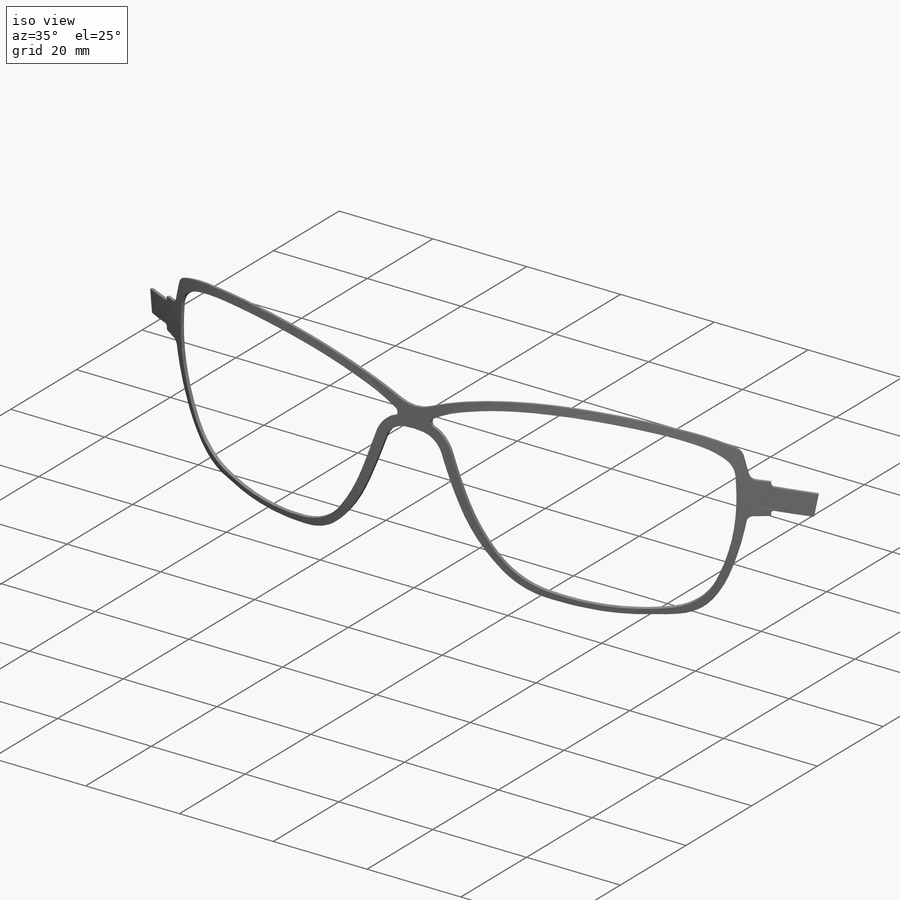
[diagram: iso view]
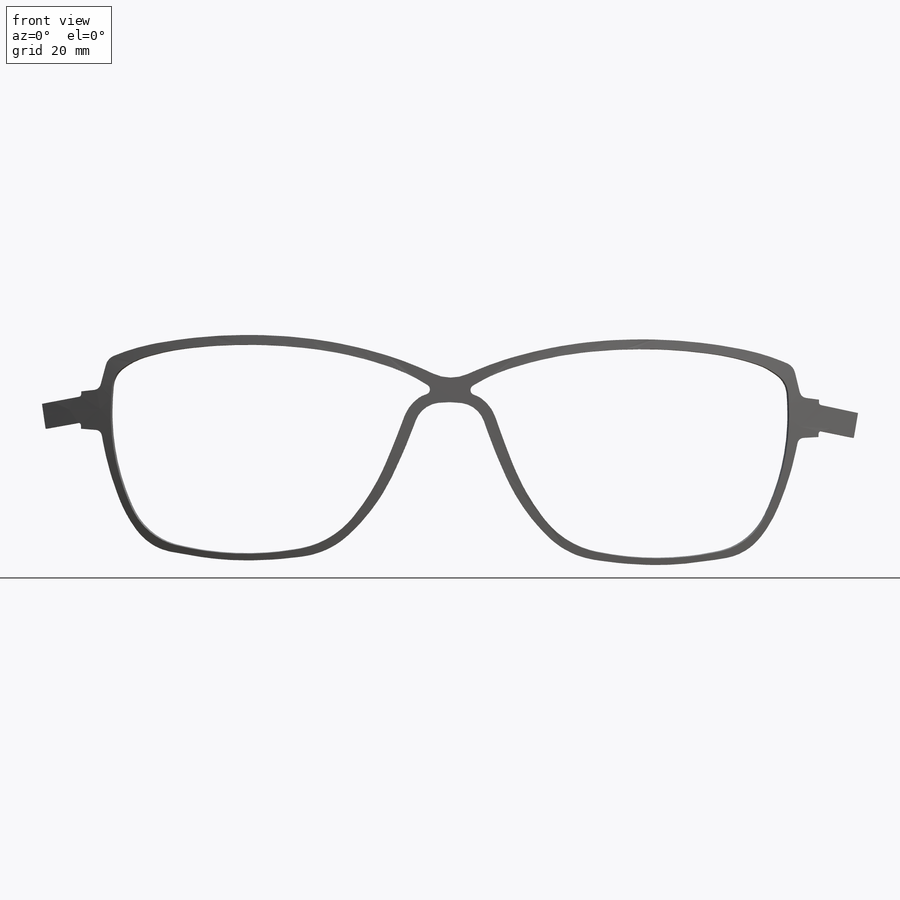
[diagram: front view]
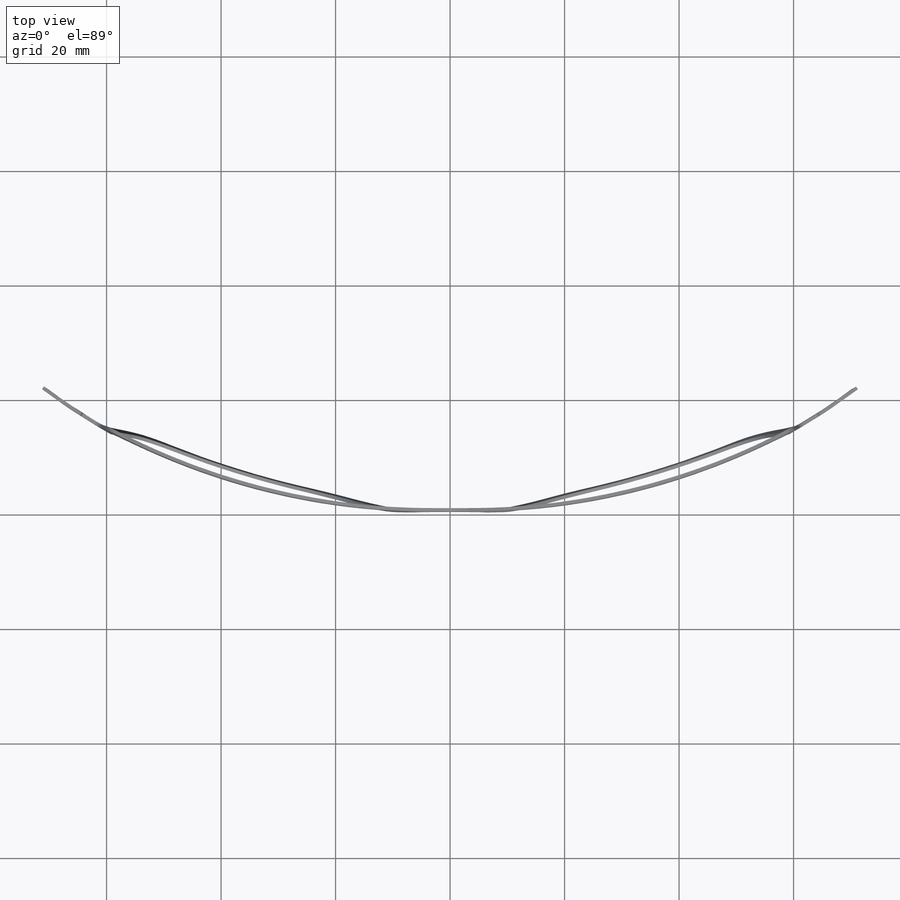
[diagram: top view]
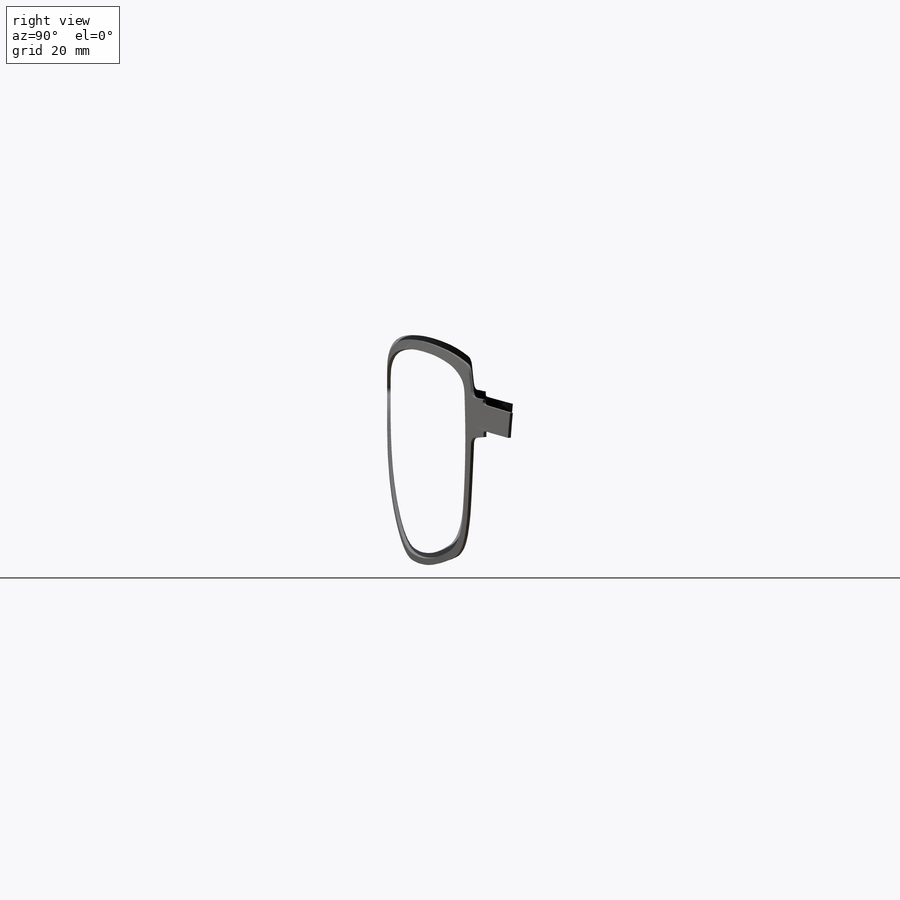
[diagram: right view]
SOLIDWORKS PART (.sldprt)
format: sldprt  version: not decoded by parser v0  size: 1,544,704 bytes
history: native  units: mm
features: sketch x15, sheet_metal_op x5, plane x3, cut_extrude x2, material x1 + 5 further entries (+10 scaffold rows collapsed; 1 parser-record rows omitted)
feature tree (42):
  scaffold x10  (default folders/planes/origin — collapsed)
  material  "Material <nicht festgelegt>"
  plane  "Ebene vorne"
  plane  "Ebene oben"
  plane  "Ebene rechts"
  sketch  "Skizze1"  dims[c1.D1=14.5mm c2.D1=2.0mm c2.D2=0.5 c2.D3=0.0mm c2.D6=500.0mm]
  sheet_metal_op  "Basis-Blech1"
  sketch  "Skizze7"  dims[c1.D1=90.0deg c2.D1=105.6mm c2.D4=90.0deg c2.D5=1.0 c2.D8=0.3mm c2.D9=0.3mm c3.D1=105.6mm c3.D2=500.0mm c3.D3=0.0mm c3.D6=10.0mm c3.D7=107.0mm]
  parser-record x1  (decoder bookkeeping rows leaked as tree rows — omitted from the tree; the rows remain in map.json)
  sketch  "Skizze10"
  "Block1-1"
  sketch  "Skizze12"
  cut_extrude  "Schnitt-Linear austragen1"  Depth=1mm
  sketch  "Skizze13"  dims[D1=0.0mm]
  cut_extrude  "Schnitt-Linear austragen2"  Depth=0.6mm
  sketch  "Biegung-Linien1"
  sketch  "Rahmen1"
  sheet_metal_op  "Blech1"
  "Abwicklung1"
  sketch  "Biegung-Linien2"
  sketch  "Rahmen2"
  sheet_metal_op  "Blech2"
  "Abwicklung1"
  sketch  "Biegung-Linien2"
  sketch  "Rahmen2"
  sheet_metal_op  "Blech3"
  "Abwicklung1"
  sketch  "Biegung-Linien2"
  sketch  "Rahmen2"
  sheet_metal_op  "Blech4"
  "Abwicklung1"
  sketch  "Biegung-Linien2"
  sketch  "Rahmen2"
decode coverage: 5 of 22 modeling features carry decoded parameters; 5 rows unclassified (native names shown)
note: suppression state not decoded; provenance and decode notes live in map.json
